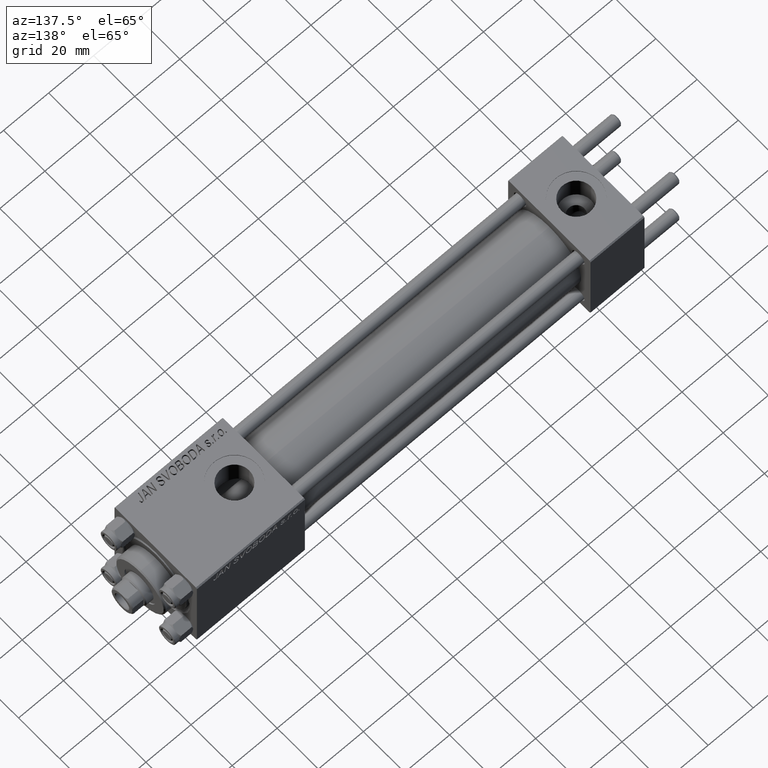
[diagram: clean part render]
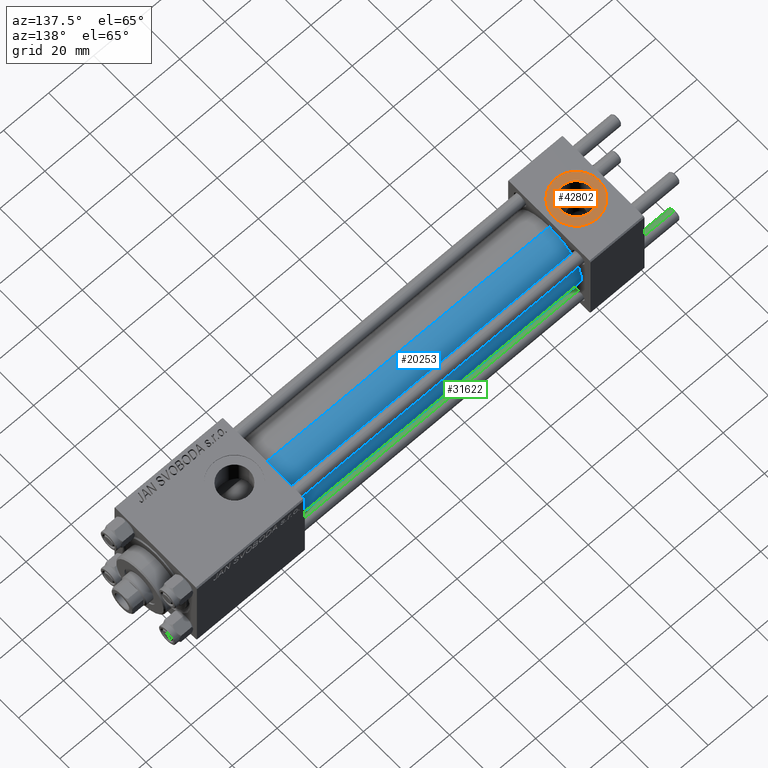
[diagram: same view with three faces highlighted in distinct colors, each labeled with its STEP entity id]
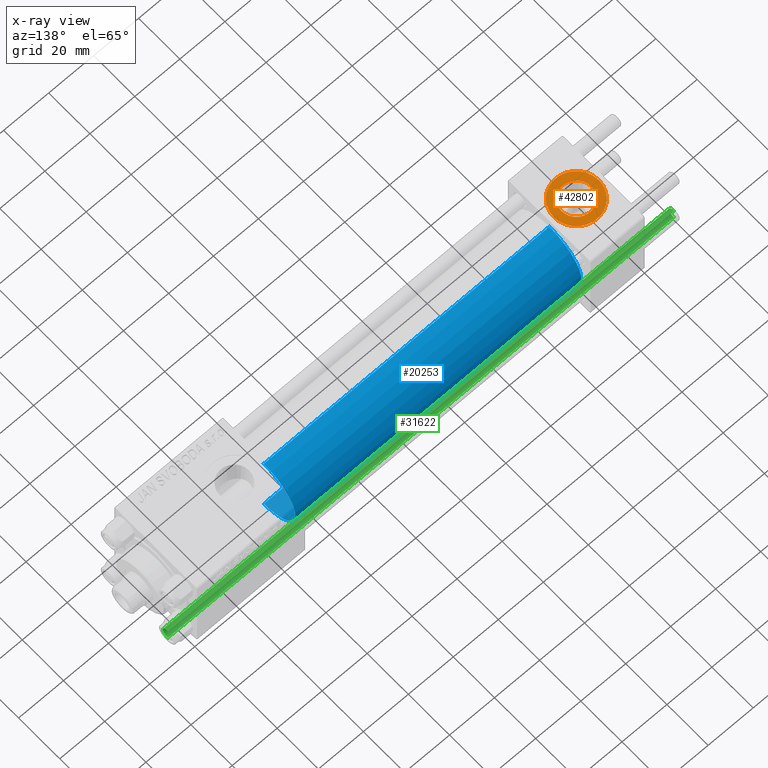
[diagram: x-ray of the same camera — body ghosted, the three highlighted faces saturated]
A machine part, auxiliary view with three faces highlighted in distinct colors.
The next image is the same camera in x-ray (body ghosted, the three faces saturated) — at least one of them is partly hidden behind the body in this view.
Their STEP definitions:

[orange] entity #42802 — the highlighted planar face has unit normal (0, 0, 1).
#1828 = AXIS2_PLACEMENT_3D ( 'NONE', #9482, #5712, #21060 ) ;
#2161 = ORIENTED_EDGE ( 'NONE', *, *, #49232, .F. ) ;
#2875 = DIRECTION ( 'NONE',  ( 1.000000000000000000, 0.000000000000000000, 0.000000000000000000 ) ) ;
#3298 = DIRECTION ( 'NONE',  ( 0.000000000000000000, 0.000000000000000000, 1.000000000000000000 ) ) ;
#3412 = CIRCLE ( 'NONE', #27640, 6.579999999999999183 ) ;
#3495 = PLANE ( 'NONE',  #34186 ) ;
#3621 = CARTESIAN_POINT ( 'NONE',  ( 12.00000000000000000, 1.540743955509788682E-30, 19.79999999999999716 ) ) ;
#3990 = EDGE_CURVE ( 'NONE', #14503, #13562, #45327, .T. ) ;
#5065 = CIRCLE ( 'NONE', #1828, 9.999999999999998224 ) ;
#5712 = DIRECTION ( 'NONE',  ( 0.000000000000000000, 0.000000000000000000, 1.000000000000000000 ) ) ;
#7272 = DIRECTION ( 'NONE',  ( 0.000000000000000000, 0.000000000000000000, 1.000000000000000000 ) ) ;
#9437 = CIRCLE ( 'NONE', #18283, 6.579999999999999183 ) ;
#9482 = CARTESIAN_POINT ( 'NONE',  ( 12.00000000000000000, 1.540743955509788682E-30, 19.79999999999999716 ) ) ;
#10015 = CARTESIAN_POINT ( 'NONE',  ( 22.00000000000000000, 1.540743955509788682E-30, 19.79999999999999716 ) ) ;
#11877 = EDGE_LOOP ( 'NONE', ( #2161, #14170 ) ) ;
#13175 = ORIENTED_EDGE ( 'NONE', *, *, #3990, .T. ) ;
#13562 = VERTEX_POINT ( 'NONE', #10015 ) ;
#14170 = ORIENTED_EDGE ( 'NONE', *, *, #36111, .F. ) ;
#14503 = VERTEX_POINT ( 'NONE', #26138 ) ;
#15618 = DIRECTION ( 'NONE',  ( 1.000000000000000000, 0.000000000000000000, 0.000000000000000000 ) ) ;
#15634 = DIRECTION ( 'NONE',  ( 0.000000000000000000, 0.000000000000000000, 1.000000000000000000 ) ) ;
#15867 = CARTESIAN_POINT ( 'NONE',  ( 12.00000000000000000, 1.540743955509788682E-30, 19.79999999999999716 ) ) ;
#18283 = AXIS2_PLACEMENT_3D ( 'NONE', #15867, #3298, #15618 ) ;
#19354 = FACE_BOUND ( 'NONE', #11877, .T. ) ;
#19417 = CARTESIAN_POINT ( 'NONE',  ( 12.00000000000000000, 1.540743955509788682E-30, 19.79999999999999716 ) ) ;
#19600 = FACE_OUTER_BOUND ( 'NONE', #49610, .T. ) ;
#21060 = DIRECTION ( 'NONE',  ( 1.000000000000000000, 0.000000000000000000, 0.000000000000000000 ) ) ;
#21597 = VERTEX_POINT ( 'NONE', #23801 ) ;
#23801 = CARTESIAN_POINT ( 'NONE',  ( 18.57999999999999829, 1.540743955509788682E-30, 19.79999999999999716 ) ) ;
#26138 = CARTESIAN_POINT ( 'NONE',  ( 2.000000000000003553, 1.224646799147354440E-15, 19.79999999999999716 ) ) ;
#26696 = VERTEX_POINT ( 'NONE', #27038 ) ;
#27038 = CARTESIAN_POINT ( 'NONE',  ( 5.420000000000000817, 8.058175938389596335E-16, 19.79999999999999716 ) ) ;
#27640 = AXIS2_PLACEMENT_3D ( 'NONE', #3621, #30322, #2875 ) ;
#30059 = AXIS2_PLACEMENT_3D ( 'NONE', #19417, #15634, #42330 ) ;
#30322 = DIRECTION ( 'NONE',  ( 0.000000000000000000, 0.000000000000000000, 1.000000000000000000 ) ) ;
#30684 = CARTESIAN_POINT ( 'NONE',  ( 12.00000000000000000, 1.540743955509788682E-30, 19.79999999999999716 ) ) ;
#31585 = ORIENTED_EDGE ( 'NONE', *, *, #33852, .T. ) ;
#33852 = EDGE_CURVE ( 'NONE', #13562, #14503, #5065, .T. ) ;
#34186 = AXIS2_PLACEMENT_3D ( 'NONE', #30684, #7272, #49827 ) ;
#36111 = EDGE_CURVE ( 'NONE', #26696, #21597, #3412, .T. ) ;
#42330 = DIRECTION ( 'NONE',  ( 1.000000000000000000, 0.000000000000000000, 0.000000000000000000 ) ) ;
#42802 = ADVANCED_FACE ( 'NONE', ( #19354, #19600 ), #3495, .T. ) ;
#45327 = CIRCLE ( 'NONE', #30059, 9.999999999999998224 ) ;
#49232 = EDGE_CURVE ( 'NONE', #21597, #26696, #9437, .T. ) ;
#49610 = EDGE_LOOP ( 'NONE', ( #31585, #13175 ) ) ;
#49827 = DIRECTION ( 'NONE',  ( 1.000000000000000000, 0.000000000000000000, -0.000000000000000000 ) ) ;

[blue] entity #20253 — the highlighted cylindrical surface (partial cylindrical patch) has radius 15.5 mm, axis along (-1, -0, -0).
#2212 = DIRECTION ( 'NONE',  ( -1.000000000000000000, -0.000000000000000000, -0.000000000000000000 ) ) ;
#3322 = EDGE_LOOP ( 'NONE', ( #35606, #43656, #20973, #5105 ) ) ;
#4019 = DIRECTION ( 'NONE',  ( 1.000000000000000000, 0.000000000000000000, 0.000000000000000000 ) ) ;
#4778 = EDGE_CURVE ( 'NONE', #18631, #26553, #13977, .T. ) ;
#5105 = ORIENTED_EDGE ( 'NONE', *, *, #18756, .F. ) ;
#5294 = EDGE_CURVE ( 'NONE', #18631, #18659, #13537, .T. ) ;
#7841 = CARTESIAN_POINT ( 'NONE',  ( 151.0000000000000000, 0.000000000000000000, 0.000000000000000000 ) ) ;
#10238 = CIRCLE ( 'NONE', #40007, 15.50000000000000000 ) ;
#10297 = CARTESIAN_POINT ( 'NONE',  ( 23.99999999999999289, 1.898202538678397557E-15, -15.50000000000000000 ) ) ;
#11052 = LINE ( 'NONE', #23382, #30447 ) ;
#12342 = EDGE_CURVE ( 'NONE', #18659, #17767, #10238, .T. ) ;
#12733 = CARTESIAN_POINT ( 'NONE',  ( 151.0000000000000000, 0.000000000000000000, 15.50000000000000000 ) ) ;
#13537 = LINE ( 'NONE', #17319, #30130 ) ;
#13977 = CIRCLE ( 'NONE', #21236, 15.50000000000000000 ) ;
#17319 = CARTESIAN_POINT ( 'NONE',  ( 151.0000000000000000, 1.898202538678397557E-15, -15.50000000000000000 ) ) ;
#17767 = VERTEX_POINT ( 'NONE', #35232 ) ;
#18631 = VERTEX_POINT ( 'NONE', #44537 ) ;
#18659 = VERTEX_POINT ( 'NONE', #10297 ) ;
#18756 = EDGE_CURVE ( 'NONE', #26553, #17767, #11052, .T. ) ;
#20253 = ADVANCED_FACE ( 'NONE', ( #45369 ), #26980, .T. ) ;
#20973 = ORIENTED_EDGE ( 'NONE', *, *, #12342, .T. ) ;
#21236 = AXIS2_PLACEMENT_3D ( 'NONE', #37132, #44185, #28586 ) ;
#23207 = DIRECTION ( 'NONE',  ( -1.000000000000000000, -0.000000000000000000, -0.000000000000000000 ) ) ;
#23382 = CARTESIAN_POINT ( 'NONE',  ( 151.0000000000000000, 0.000000000000000000, 15.50000000000000000 ) ) ;
#26553 = VERTEX_POINT ( 'NONE', #12733 ) ;
#26980 = CYLINDRICAL_SURFACE ( 'NONE', #41726, 15.50000000000000000 ) ;
#28586 = DIRECTION ( 'NONE',  ( 0.000000000000000000, 0.000000000000000000, -1.000000000000000000 ) ) ;
#30130 = VECTOR ( 'NONE', #2212, 1000.000000000000000 ) ;
#30447 = VECTOR ( 'NONE', #41765, 1000.000000000000000 ) ;
#30953 = CARTESIAN_POINT ( 'NONE',  ( 23.99999999999999289, 0.000000000000000000, 0.000000000000000000 ) ) ;
#31011 = DIRECTION ( 'NONE',  ( 0.000000000000000000, 0.000000000000000000, 1.000000000000000000 ) ) ;
#35232 = CARTESIAN_POINT ( 'NONE',  ( 23.99999999999999289, 0.000000000000000000, 15.50000000000000000 ) ) ;
#35606 = ORIENTED_EDGE ( 'NONE', *, *, #4778, .F. ) ;
#37132 = CARTESIAN_POINT ( 'NONE',  ( 151.0000000000000000, 0.000000000000000000, 0.000000000000000000 ) ) ;
#40007 = AXIS2_PLACEMENT_3D ( 'NONE', #30953, #4019, #42280 ) ;
#41726 = AXIS2_PLACEMENT_3D ( 'NONE', #7841, #23207, #31011 ) ;
#41765 = DIRECTION ( 'NONE',  ( -1.000000000000000000, -0.000000000000000000, -0.000000000000000000 ) ) ;
#42280 = DIRECTION ( 'NONE',  ( 0.000000000000000000, 0.000000000000000000, 1.000000000000000000 ) ) ;
#43656 = ORIENTED_EDGE ( 'NONE', *, *, #5294, .T. ) ;
#44185 = DIRECTION ( 'NONE',  ( 1.000000000000000000, 0.000000000000000000, 0.000000000000000000 ) ) ;
#44537 = CARTESIAN_POINT ( 'NONE',  ( 151.0000000000000000, 1.898202538678397557E-15, -15.50000000000000000 ) ) ;
#45369 = FACE_OUTER_BOUND ( 'NONE', #3322, .T. ) ;

[green] entity #31622 — the highlighted cylindrical surface (edge-blend (fillet) strip) has radius 2.5 mm, axis along (1, 0, -0).
#1875 = EDGE_CURVE ( 'NONE', #6440, #12688, #46916, .T. ) ;
#3712 = DIRECTION ( 'NONE',  ( -1.000000000000000000, 0.000000000000000000, 0.000000000000000000 ) ) ;
#4227 = ORIENTED_EDGE ( 'NONE', *, *, #5363, .T. ) ;
#4457 = FACE_OUTER_BOUND ( 'NONE', #12375, .T. ) ;
#5363 = EDGE_CURVE ( 'NONE', #12688, #39533, #30404, .T. ) ;
#6440 = VERTEX_POINT ( 'NONE', #19879 ) ;
#7351 = ORIENTED_EDGE ( 'NONE', *, *, #10670, .T. ) ;
#8467 = CARTESIAN_POINT ( 'NONE',  ( 0.000000000000000000, 0.000000000000000000, 226.0000000000000000 ) ) ;
#8643 = VERTEX_POINT ( 'NONE', #34320 ) ;
#9019 = AXIS2_PLACEMENT_3D ( 'NONE', #8467, #23341, #3712 ) ;
#10440 = CARTESIAN_POINT ( 'NONE',  ( 0.000000000000000000, 0.000000000000000000, 0.4999999999999726885 ) ) ;
#10670 = EDGE_CURVE ( 'NONE', #39533, #8643, #21448, .T. ) ;
#11551 = DIRECTION ( 'NONE',  ( 1.000000000000000000, 0.000000000000000000, 0.000000000000000000 ) ) ;
#11829 = AXIS2_PLACEMENT_3D ( 'NONE', #10440, #13480, #36398 ) ;
#12375 = EDGE_LOOP ( 'NONE', ( #44129, #30927, #4227, #7351 ) ) ;
#12688 = VERTEX_POINT ( 'NONE', #45003 ) ;
#13480 = DIRECTION ( 'NONE',  ( -0.000000000000000000, -0.000000000000000000, 1.000000000000000000 ) ) ;
#19879 = CARTESIAN_POINT ( 'NONE',  ( 2.500000000000000000, 3.061616997868383141E-16, 225.5000000000000284 ) ) ;
#20086 = DIRECTION ( 'NONE',  ( -0.000000000000000000, -0.000000000000000000, -1.000000000000000000 ) ) ;
#21095 = EDGE_CURVE ( 'NONE', #6440, #8643, #23610, .T. ) ;
#21448 = CIRCLE ( 'NONE', #11829, 2.500000000000000000 ) ;
#22597 = DIRECTION ( 'NONE',  ( -0.000000000000000000, -0.000000000000000000, -1.000000000000000000 ) ) ;
#22628 = CARTESIAN_POINT ( 'NONE',  ( -2.500000000000000000, 0.000000000000000000, 0.4999999999999726885 ) ) ;
#23137 = DIRECTION ( 'NONE',  ( 0.000000000000000000, 0.000000000000000000, -1.000000000000000000 ) ) ;
#23341 = DIRECTION ( 'NONE',  ( -0.000000000000000000, -0.000000000000000000, -1.000000000000000000 ) ) ;
#23383 = CARTESIAN_POINT ( 'NONE',  ( 0.000000000000000000, 0.000000000000000000, 225.5000000000000284 ) ) ;
#23610 = LINE ( 'NONE', #49555, #37028 ) ;
#27116 = CYLINDRICAL_SURFACE ( 'NONE', #9019, 2.500000000000000000 ) ;
#28406 = AXIS2_PLACEMENT_3D ( 'NONE', #23383, #23137, #11551 ) ;
#30404 = LINE ( 'NONE', #49284, #42996 ) ;
#30927 = ORIENTED_EDGE ( 'NONE', *, *, #1875, .T. ) ;
#31622 = ADVANCED_FACE ( 'NONE', ( #4457 ), #27116, .T. ) ;
#34320 = CARTESIAN_POINT ( 'NONE',  ( 2.500000000000000000, 3.061616997868383141E-16, 0.4999999999999726885 ) ) ;
#36398 = DIRECTION ( 'NONE',  ( 1.000000000000000000, 0.000000000000000000, 0.000000000000000000 ) ) ;
#37028 = VECTOR ( 'NONE', #20086, 1000.000000000000000 ) ;
#39533 = VERTEX_POINT ( 'NONE', #22628 ) ;
#42996 = VECTOR ( 'NONE', #22597, 1000.000000000000000 ) ;
#44129 = ORIENTED_EDGE ( 'NONE', *, *, #21095, .F. ) ;
#45003 = CARTESIAN_POINT ( 'NONE',  ( -2.500000000000000000, 0.000000000000000000, 225.5000000000000284 ) ) ;
#46916 = CIRCLE ( 'NONE', #28406, 2.500000000000000000 ) ;
#49284 = CARTESIAN_POINT ( 'NONE',  ( -2.500000000000000000, 0.000000000000000000, 226.0000000000000000 ) ) ;
#49555 = CARTESIAN_POINT ( 'NONE',  ( 2.500000000000000000, 3.061616997868383141E-16, 226.0000000000000000 ) ) ;